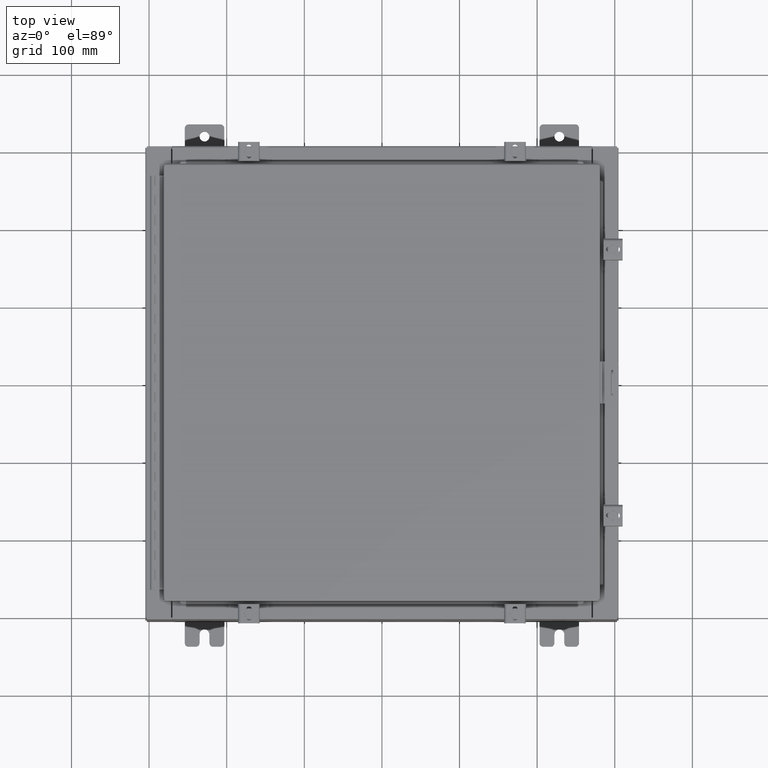
[diagram: clean part render]
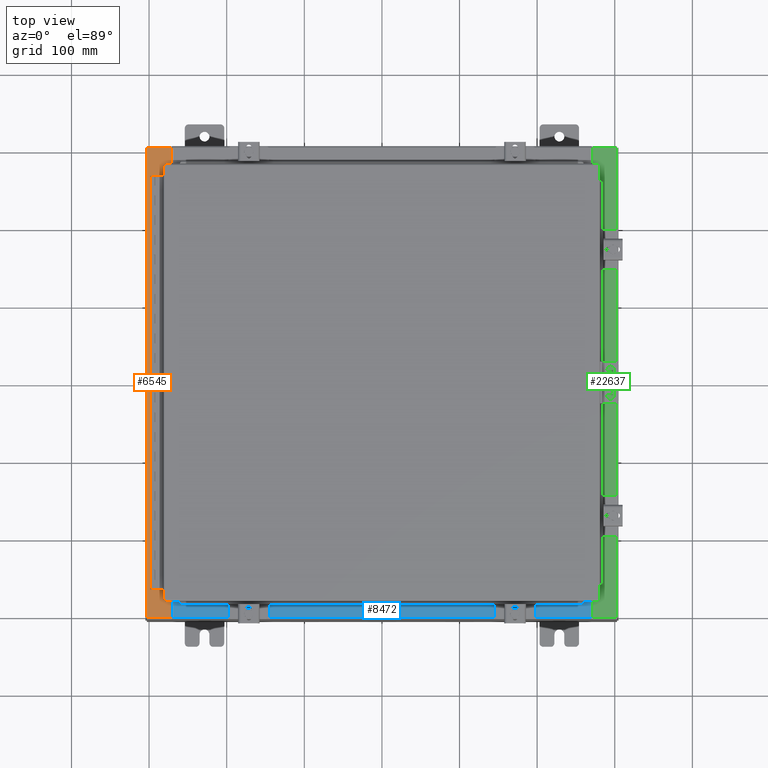
[diagram: same view with three faces highlighted in distinct colors, each labeled with its STEP entity id]
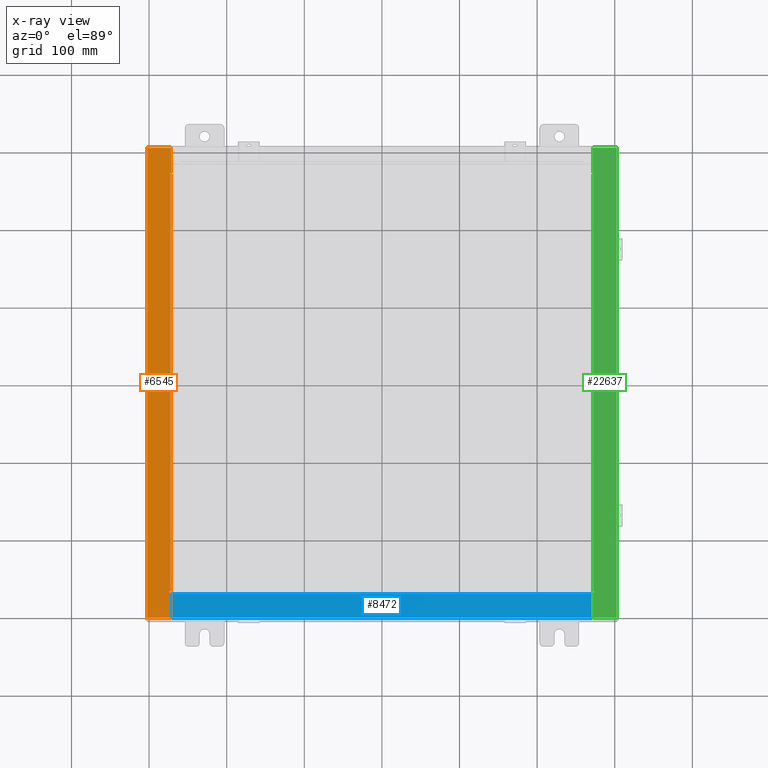
[diagram: x-ray of the same camera — body ghosted, the three highlighted faces saturated]
A machine part, top view with three faces highlighted in distinct colors.
The next image is the same camera in x-ray (body ghosted, the three faces saturated) — at least one of them is partly hidden behind the body in this view.
Their STEP definitions:

[orange] entity #6545 — the highlighted planar face has unit normal (0, 0, -1).
#136 = ORIENTED_EDGE ( 'NONE', *, *, #8608, .F. ) ;
#384 = EDGE_CURVE ( 'NONE', #30628, #19797, #4215, .T. ) ;
#641 = DIRECTION ( 'NONE',  ( -0.0000000000000000000, 1.000000000000000000, -0.0000000000000000000 ) ) ;
#872 = EDGE_CURVE ( 'NONE', #1338, #16832, #12777, .T. ) ;
#1001 = DIRECTION ( 'NONE',  ( -1.000000000000000000, 0.0000000000000000000, -7.132762385546384700E-015 ) ) ;
#1288 = EDGE_CURVE ( 'NONE', #1552, #23624, #2588, .T. ) ;
#1338 = VERTEX_POINT ( 'NONE', #9903 ) ;
#1339 = EDGE_CURVE ( 'NONE', #5008, #29262, #26895, .T. ) ;
#1468 = ORIENTED_EDGE ( 'NONE', *, *, #31183, .F. ) ;
#1552 = VERTEX_POINT ( 'NONE', #9596 ) ;
#2035 = DIRECTION ( 'NONE',  ( 1.000000000000000000, 0.0000000000000000000, 2.170286390199955400E-014 ) ) ;
#2414 = DIRECTION ( 'NONE',  ( -1.000000000000000000, 0.0000000000000000000, 0.0000000000000000000 ) ) ;
#2588 = LINE ( 'NONE', #24606, #28472 ) ;
#3263 = LINE ( 'NONE', #24154, #9909 ) ;
#3873 = CARTESIAN_POINT ( 'NONE',  ( -10.69970000000003200, 10.63109999999999600, 7.925300000000007100 ) ) ;
#3934 = AXIS2_PLACEMENT_3D ( 'NONE', #21127, #6243, #1001 ) ;
#4215 = CIRCLE ( 'NONE', #12865, 0.01867499999999949400 ) ;
#4459 = CARTESIAN_POINT ( 'NONE',  ( -10.69970000000003200, 10.63109999999999600, 7.925300000000008900 ) ) ;
#4732 = VERTEX_POINT ( 'NONE', #6994 ) ;
#4979 = CARTESIAN_POINT ( 'NONE',  ( -10.69970000000003200, 0.0000000000000000000, 7.925300000000008900 ) ) ;
#5008 = VERTEX_POINT ( 'NONE', #25028 ) ;
#5230 = ORIENTED_EDGE ( 'NONE', *, *, #9436, .F. ) ;
#5379 = EDGE_LOOP ( 'NONE', ( #14206, #25906, #11523, #1468, #12451, #27984, #8763, #12577, #5230, #20516, #27761, #136 ) ) ;
#5710 = CARTESIAN_POINT ( 'NONE',  ( -10.75005000000003400, -10.59374999999998900, 7.925300000000008900 ) ) ;
#6137 = VECTOR ( 'NONE', #10556, 39.37007874015748100 ) ;
#6149 = CARTESIAN_POINT ( 'NONE',  ( -10.71270000000003500, 10.59374999999999300, 7.925300000000006200 ) ) ;
#6243 = DIRECTION ( 'NONE',  ( 7.132762385546384700E-015, 0.0000000000000000000, -1.000000000000000000 ) ) ;
#6545 = ADVANCED_FACE ( 'NONE', ( #30928 ), #26410, .F. ) ;
#6599 = DIRECTION ( 'NONE',  ( 1.000000000000000000, -0.0000000000000000000, 7.132762385546384700E-015 ) ) ;
#6705 = LINE ( 'NONE', #4979, #17647 ) ;
#6714 = CARTESIAN_POINT ( 'NONE',  ( -11.91230000000003200, 11.92529999999999800, 7.925300000000000000 ) ) ;
#6885 = VECTOR ( 'NONE', #31942, 39.37007874015748100 ) ;
#6994 = CARTESIAN_POINT ( 'NONE',  ( -10.75005000000003400, 10.63109999999999600, 7.925300000000008900 ) ) ;
#7135 = VECTOR ( 'NONE', #2035, 39.37007874015748100 ) ;
#7811 = LINE ( 'NONE', #27278, #21126 ) ;
#8262 = LINE ( 'NONE', #3873, #21577 ) ;
#8608 = EDGE_CURVE ( 'NONE', #4732, #15903, #21281, .T. ) ;
#8763 = ORIENTED_EDGE ( 'NONE', *, *, #16333, .F. ) ;
#8813 = EDGE_CURVE ( 'NONE', #19196, #1338, #3263, .T. ) ;
#9122 = CARTESIAN_POINT ( 'NONE',  ( -10.75005000000003400, -10.63109999999998800, 7.925300000000008900 ) ) ;
#9436 = EDGE_CURVE ( 'NONE', #29262, #30628, #10243, .T. ) ;
#9596 = CARTESIAN_POINT ( 'NONE',  ( -10.69970000000003200, 11.92529999999999800, 7.925300000000008900 ) ) ;
#9903 = CARTESIAN_POINT ( 'NONE',  ( -10.69970000000003200, -11.92530000000000000, 7.925300000000008900 ) ) ;
#9909 = VECTOR ( 'NONE', #6599, 39.37007874015748100 ) ;
#10243 = LINE ( 'NONE', #32417, #16090 ) ;
#10556 = DIRECTION ( 'NONE',  ( 0.0000000000000000000, 1.000000000000000000, 0.0000000000000000000 ) ) ;
#11523 = ORIENTED_EDGE ( 'NONE', *, *, #1288, .T. ) ;
#11856 = LINE ( 'NONE', #30648, #23629 ) ;
#12451 = ORIENTED_EDGE ( 'NONE', *, *, #8813, .T. ) ;
#12577 = ORIENTED_EDGE ( 'NONE', *, *, #384, .F. ) ;
#12777 = LINE ( 'NONE', #17636, #6137 ) ;
#12865 = AXIS2_PLACEMENT_3D ( 'NONE', #16654, #12980, #28046 ) ;
#12980 = DIRECTION ( 'NONE',  ( -7.132762385546384700E-015, -0.0000000000000000000, 1.000000000000000000 ) ) ;
#13153 = CARTESIAN_POINT ( 'NONE',  ( -10.71270000000003500, -10.59374999999998900, 7.925300000000006200 ) ) ;
#14206 = ORIENTED_EDGE ( 'NONE', *, *, #26430, .F. ) ;
#14909 = DIRECTION ( 'NONE',  ( 1.000000000000000000, 0.0000000000000000000, 0.0000000000000000000 ) ) ;
#15903 = VERTEX_POINT ( 'NONE', #32496 ) ;
#16090 = VECTOR ( 'NONE', #2414, 39.37007874015748100 ) ;
#16300 = AXIS2_PLACEMENT_3D ( 'NONE', #17412, #32456, #14909 ) ;
#16333 = EDGE_CURVE ( 'NONE', #19797, #16832, #26361, .T. ) ;
#16654 = CARTESIAN_POINT ( 'NONE',  ( -10.75005000000003400, -10.61242499999998900, 7.925300000000006200 ) ) ;
#16832 = VERTEX_POINT ( 'NONE', #18934 ) ;
#17412 = CARTESIAN_POINT ( 'NONE',  ( -10.75005000000003400, 10.61242499999999800, 7.925300000000006200 ) ) ;
#17636 = CARTESIAN_POINT ( 'NONE',  ( -10.69970000000003200, 0.0000000000000000000, 7.925300000000008900 ) ) ;
#17647 = VECTOR ( 'NONE', #22522, 39.37007874015748100 ) ;
#18845 = DIRECTION ( 'NONE',  ( -1.000000000000000000, 0.0000000000000000000, -2.170286390199955400E-014 ) ) ;
#18934 = CARTESIAN_POINT ( 'NONE',  ( -10.69970000000003200, -10.63109999999999100, 7.925300000000008900 ) ) ;
#19196 = VERTEX_POINT ( 'NONE', #29420 ) ;
#19797 = VERTEX_POINT ( 'NONE', #9122 ) ;
#20516 = ORIENTED_EDGE ( 'NONE', *, *, #1339, .F. ) ;
#21126 = VECTOR ( 'NONE', #24752, 39.37007874015748100 ) ;
#21127 = CARTESIAN_POINT ( 'NONE',  ( -5.679009539018295300E-014, 0.0000000000000000000, 7.925300000000085300 ) ) ;
#21281 = CIRCLE ( 'NONE', #16300, 0.01867499999999949400 ) ;
#21577 = VECTOR ( 'NONE', #18845, 39.37007874015748100 ) ;
#22074 = CARTESIAN_POINT ( 'NONE',  ( -10.75005000000003400, -10.63109999999998800, 7.925300000000006200 ) ) ;
#22141 = VERTEX_POINT ( 'NONE', #4459 ) ;
#22522 = DIRECTION ( 'NONE',  ( 0.0000000000000000000, 1.000000000000000000, 0.0000000000000000000 ) ) ;
#23624 = VERTEX_POINT ( 'NONE', #6714 ) ;
#23629 = VECTOR ( 'NONE', #641, 39.37007874015748100 ) ;
#24154 = CARTESIAN_POINT ( 'NONE',  ( -5.679009539018295300E-014, -11.92530000000000000, 7.925300000000085300 ) ) ;
#24488 = DIRECTION ( 'NONE',  ( -1.000000000000000000, 0.0000000000000000000, -7.132762385546384700E-015 ) ) ;
#24606 = CARTESIAN_POINT ( 'NONE',  ( -5.679009539018295300E-014, 11.92529999999999800, 7.925300000000085300 ) ) ;
#24752 = DIRECTION ( 'NONE',  ( 1.000000000000000000, 0.0000000000000000000, 0.0000000000000000000 ) ) ;
#25028 = CARTESIAN_POINT ( 'NONE',  ( -10.71270000000003500, 10.59374999999999800, 7.925300000000006200 ) ) ;
#25906 = ORIENTED_EDGE ( 'NONE', *, *, #26080, .T. ) ;
#26080 = EDGE_CURVE ( 'NONE', #22141, #1552, #6705, .T. ) ;
#26361 = LINE ( 'NONE', #22074, #7135 ) ;
#26410 = PLANE ( 'NONE',  #3934 ) ;
#26430 = EDGE_CURVE ( 'NONE', #22141, #4732, #8262, .T. ) ;
#26895 = LINE ( 'NONE', #6149, #6885 ) ;
#27204 = EDGE_CURVE ( 'NONE', #15903, #5008, #7811, .T. ) ;
#27278 = CARTESIAN_POINT ( 'NONE',  ( -10.75005000000003400, 10.59374999999999800, 7.925300000000006200 ) ) ;
#27761 = ORIENTED_EDGE ( 'NONE', *, *, #27204, .F. ) ;
#27984 = ORIENTED_EDGE ( 'NONE', *, *, #872, .T. ) ;
#28046 = DIRECTION ( 'NONE',  ( 1.000000000000000000, 0.0000000000000000000, 0.0000000000000000000 ) ) ;
#28472 = VECTOR ( 'NONE', #24488, 39.37007874015748100 ) ;
#29262 = VERTEX_POINT ( 'NONE', #13153 ) ;
#29420 = CARTESIAN_POINT ( 'NONE',  ( -11.91230000000003200, -11.92530000000000000, 7.925300000000000000 ) ) ;
#30628 = VERTEX_POINT ( 'NONE', #5710 ) ;
#30648 = CARTESIAN_POINT ( 'NONE',  ( -11.91230000000003200, 11.92529999999999800, 7.925300000000000000 ) ) ;
#30928 = FACE_OUTER_BOUND ( 'NONE', #5379, .T. ) ;
#31183 = EDGE_CURVE ( 'NONE', #19196, #23624, #11856, .T. ) ;
#31942 = DIRECTION ( 'NONE',  ( -0.0000000000000000000, -1.000000000000000000, -0.0000000000000000000 ) ) ;
#32417 = CARTESIAN_POINT ( 'NONE',  ( -10.71270000000003500, -10.59374999999998900, 7.925300000000006200 ) ) ;
#32456 = DIRECTION ( 'NONE',  ( -7.132762385546384700E-015, -0.0000000000000000000, 1.000000000000000000 ) ) ;
#32496 = CARTESIAN_POINT ( 'NONE',  ( -10.75005000000003400, 10.59374999999999800, 7.925300000000008900 ) ) ;

[blue] entity #8472 — the highlighted planar face has unit normal (-0, -0, 1).
#234 = ORIENTED_EDGE ( 'NONE', *, *, #11885, .F. ) ;
#672 = CARTESIAN_POINT ( 'NONE',  ( 10.63720000000000400, -1.287299999999999900, 4.000000000000003600 ) ) ;
#1197 = LINE ( 'NONE', #32164, #13716 ) ;
#1350 = DIRECTION ( 'NONE',  ( 0.0000000000000000000, -1.000000000000000000, 3.566381192773190000E-015 ) ) ;
#1973 = ORIENTED_EDGE ( 'NONE', *, *, #28214, .F. ) ;
#2938 = AXIS2_PLACEMENT_3D ( 'NONE', #11379, #21365, #1350 ) ;
#3777 = VERTEX_POINT ( 'NONE', #28280 ) ;
#4613 = VECTOR ( 'NONE', #18255, 39.37007874015748100 ) ;
#8472 = ADVANCED_FACE ( 'NONE', ( #24441 ), #14005, .T. ) ;
#8869 = EDGE_LOOP ( 'NONE', ( #23552, #1973, #234, #10138 ) ) ;
#10138 = ORIENTED_EDGE ( 'NONE', *, *, #30569, .T. ) ;
#11248 = LINE ( 'NONE', #672, #4613 ) ;
#11379 = CARTESIAN_POINT ( 'NONE',  ( 0.0000000000000000000, 1.425992975200418500E-014, 4.000000000000000000 ) ) ;
#11885 = EDGE_CURVE ( 'NONE', #24832, #3777, #1197, .T. ) ;
#13716 = VECTOR ( 'NONE', #14504, 39.37007874015748100 ) ;
#14005 = PLANE ( 'NONE',  #2938 ) ;
#14090 = EDGE_CURVE ( 'NONE', #15236, #14172, #21417, .T. ) ;
#14172 = VERTEX_POINT ( 'NONE', #22307 ) ;
#14504 = DIRECTION ( 'NONE',  ( -0.0000000000000000000, -1.000000000000000000, 3.566381192773190000E-015 ) ) ;
#15236 = VERTEX_POINT ( 'NONE', #19693 ) ;
#18031 = DIRECTION ( 'NONE',  ( -1.000000000000000000, 2.568202152506545800E-017, -9.159187855938968600E-032 ) ) ;
#18255 = DIRECTION ( 'NONE',  ( -1.000000000000000000, 0.0000000000000000000, 0.0000000000000000000 ) ) ;
#19528 = CARTESIAN_POINT ( 'NONE',  ( -10.63720000000000200, -0.07469999999999973900, 4.000000000000000000 ) ) ;
#19693 = CARTESIAN_POINT ( 'NONE',  ( -10.63720000000000200, -1.287299999999999200, 4.000000000000004400 ) ) ;
#20122 = LINE ( 'NONE', #30571, #26030 ) ;
#20630 = VECTOR ( 'NONE', #32181, 39.37007874015748100 ) ;
#21365 = DIRECTION ( 'NONE',  ( 0.0000000000000000000, 3.566381192773190000E-015, 1.000000000000000000 ) ) ;
#21417 = LINE ( 'NONE', #19528, #20630 ) ;
#22307 = CARTESIAN_POINT ( 'NONE',  ( -10.63720000000000200, -0.08770000000000000000, 4.000000000000000000 ) ) ;
#23552 = ORIENTED_EDGE ( 'NONE', *, *, #14090, .F. ) ;
#24441 = FACE_OUTER_BOUND ( 'NONE', #8869, .T. ) ;
#24832 = VERTEX_POINT ( 'NONE', #26579 ) ;
#26030 = VECTOR ( 'NONE', #18031, 39.37007874015748100 ) ;
#26579 = CARTESIAN_POINT ( 'NONE',  ( 10.63720000000000400, -0.08769999999999965300, 4.000000000000000000 ) ) ;
#28214 = EDGE_CURVE ( 'NONE', #3777, #15236, #11248, .T. ) ;
#28280 = CARTESIAN_POINT ( 'NONE',  ( 10.63720000000000200, -1.287299999999999900, 4.000000000000004400 ) ) ;
#30569 = EDGE_CURVE ( 'NONE', #24832, #14172, #20122, .T. ) ;
#30571 = CARTESIAN_POINT ( 'NONE',  ( -2.252313287748606700E-018, -0.08770000000000000000, 4.000000000000000900 ) ) ;
#32164 = CARTESIAN_POINT ( 'NONE',  ( 10.63720000000000200, -1.300299999999999800, 4.000000000000004400 ) ) ;
#32181 = DIRECTION ( 'NONE',  ( -0.0000000000000000000, 1.000000000000000000, -3.566381192773190000E-015 ) ) ;

[green] entity #22637 — the highlighted planar face has unit normal (-0, -0, -1).
#1234 = CARTESIAN_POINT ( 'NONE',  ( 10.71270000000003000, -10.59375000000000200, 7.925300000000009800 ) ) ;
#1383 = ORIENTED_EDGE ( 'NONE', *, *, #14694, .F. ) ;
#1505 = LINE ( 'NONE', #16838, #28177 ) ;
#1619 = FACE_OUTER_BOUND ( 'NONE', #3401, .T. ) ;
#1790 = VERTEX_POINT ( 'NONE', #13407 ) ;
#1930 = CARTESIAN_POINT ( 'NONE',  ( 10.75005000000003000, -10.63110000000000200, 7.925300000000008900 ) ) ;
#1962 = VERTEX_POINT ( 'NONE', #31929 ) ;
#2003 = LINE ( 'NONE', #9413, #28666 ) ;
#2334 = CARTESIAN_POINT ( 'NONE',  ( 10.71270000000003000, 10.59374999999998400, 7.925300000000009800 ) ) ;
#2363 = VERTEX_POINT ( 'NONE', #25204 ) ;
#2484 = CIRCLE ( 'NONE', #10827, 0.01867499999999949400 ) ;
#2486 = CARTESIAN_POINT ( 'NONE',  ( 10.75005000000003000, 10.63109999999998400, 7.925300000000008900 ) ) ;
#3401 = EDGE_LOOP ( 'NONE', ( #18273, #3866, #27136, #30203, #18004, #25582, #1383, #3640, #12424, #21779, #30522, #12222 ) ) ;
#3640 = ORIENTED_EDGE ( 'NONE', *, *, #31002, .F. ) ;
#3866 = ORIENTED_EDGE ( 'NONE', *, *, #20347, .T. ) ;
#3982 = CARTESIAN_POINT ( 'NONE',  ( 4.972393517341146200E-014, 3.631055806426268100E-016, 7.925300000000075500 ) ) ;
#4685 = EDGE_CURVE ( 'NONE', #9062, #29041, #9481, .T. ) ;
#4910 = DIRECTION ( 'NONE',  ( 6.241167087353086200E-015, 4.581600452255730400E-017, 1.000000000000000000 ) ) ;
#5749 = EDGE_CURVE ( 'NONE', #23033, #24791, #6280, .T. ) ;
#5829 = DIRECTION ( 'NONE',  ( -1.000000000000000000, 0.0000000000000000000, 0.0000000000000000000 ) ) ;
#5937 = EDGE_CURVE ( 'NONE', #18363, #19207, #28249, .T. ) ;
#5948 = VECTOR ( 'NONE', #14557, 39.37007874015748100 ) ;
#6280 = LINE ( 'NONE', #24365, #12915 ) ;
#6899 = DIRECTION ( 'NONE',  ( -1.000000000000000000, 0.0000000000000000000, 6.241167087353087800E-015 ) ) ;
#7915 = AXIS2_PLACEMENT_3D ( 'NONE', #3982, #11511, #29063 ) ;
#8665 = VECTOR ( 'NONE', #13212, 39.37007874015748100 ) ;
#9062 = VERTEX_POINT ( 'NONE', #2334 ) ;
#9110 = CARTESIAN_POINT ( 'NONE',  ( 10.71270000000003000, 10.59374999999998400, 7.925300000000009800 ) ) ;
#9340 = EDGE_CURVE ( 'NONE', #10999, #9062, #25171, .T. ) ;
#9413 = CARTESIAN_POINT ( 'NONE',  ( 10.69970000000002800, 3.631055806426238000E-016, 7.925300000000008900 ) ) ;
#9450 = AXIS2_PLACEMENT_3D ( 'NONE', #24645, #9625, #27172 ) ;
#9481 = LINE ( 'NONE', #9110, #23596 ) ;
#9625 = DIRECTION ( 'NONE',  ( 6.241167087353086200E-015, 4.581600452255730400E-017, 1.000000000000000000 ) ) ;
#10827 = AXIS2_PLACEMENT_3D ( 'NONE', #19864, #4910, #22431 ) ;
#10986 = LINE ( 'NONE', #20663, #8665 ) ;
#10999 = VERTEX_POINT ( 'NONE', #1234 ) ;
#11511 = DIRECTION ( 'NONE',  ( -6.241167087353086200E-015, -4.581600452255731000E-017, -1.000000000000000000 ) ) ;
#11743 = DIRECTION ( 'NONE',  ( -1.000000000000000000, 0.0000000000000000000, -2.170286390199955400E-014 ) ) ;
#11920 = DIRECTION ( 'NONE',  ( -4.379057701015054300E-047, -1.000000000000000000, 4.581600452255731000E-017 ) ) ;
#12222 = ORIENTED_EDGE ( 'NONE', *, *, #18130, .F. ) ;
#12424 = ORIENTED_EDGE ( 'NONE', *, *, #4685, .F. ) ;
#12915 = VECTOR ( 'NONE', #23481, 39.37007874015748100 ) ;
#13061 = LINE ( 'NONE', #29287, #26416 ) ;
#13079 = DIRECTION ( 'NONE',  ( 1.000000000000000000, 0.0000000000000000000, 2.170286390199955400E-014 ) ) ;
#13212 = DIRECTION ( 'NONE',  ( -9.163200904511462000E-017, -1.000000000000000000, 4.581600452255787700E-017 ) ) ;
#13407 = CARTESIAN_POINT ( 'NONE',  ( 10.75005000000003000, -10.59375000000000200, 7.925300000000008900 ) ) ;
#14557 = DIRECTION ( 'NONE',  ( -0.0000000000000000000, 1.000000000000000000, -0.0000000000000000000 ) ) ;
#14694 = EDGE_CURVE ( 'NONE', #17761, #2363, #13061, .T. ) ;
#14803 = CARTESIAN_POINT ( 'NONE',  ( 10.75005000000003000, 10.59374999999998400, 7.925300000000007100 ) ) ;
#15048 = CIRCLE ( 'NONE', #9450, 0.01867499999999949400 ) ;
#15296 = LINE ( 'NONE', #31882, #21979 ) ;
#15374 = CARTESIAN_POINT ( 'NONE',  ( 10.69970000000002800, -10.63110000000000200, 7.925300000000008900 ) ) ;
#16838 = CARTESIAN_POINT ( 'NONE',  ( 4.972393517341146200E-014, 11.92529999999999600, 7.925300000000075500 ) ) ;
#17274 = EDGE_CURVE ( 'NONE', #1962, #24791, #10986, .T. ) ;
#17761 = VERTEX_POINT ( 'NONE', #2486 ) ;
#18004 = ORIENTED_EDGE ( 'NONE', *, *, #27897, .T. ) ;
#18130 = EDGE_CURVE ( 'NONE', #19207, #1790, #15048, .T. ) ;
#18273 = ORIENTED_EDGE ( 'NONE', *, *, #5937, .F. ) ;
#18363 = VERTEX_POINT ( 'NONE', #28271 ) ;
#19207 = VERTEX_POINT ( 'NONE', #1930 ) ;
#19344 = DIRECTION ( 'NONE',  ( -4.379057701015054300E-047, -1.000000000000000000, 4.581600452255731000E-017 ) ) ;
#19864 = CARTESIAN_POINT ( 'NONE',  ( 10.75005000000003000, 10.61242499999998400, 7.925300000000009800 ) ) ;
#20347 = EDGE_CURVE ( 'NONE', #18363, #23033, #15296, .T. ) ;
#20364 = EDGE_CURVE ( 'NONE', #24210, #2363, #2003, .T. ) ;
#20600 = VECTOR ( 'NONE', #5829, 39.37007874015748100 ) ;
#20663 = CARTESIAN_POINT ( 'NONE',  ( 11.91230000000002700, -11.92530000000000400, 7.925300000000000900 ) ) ;
#20752 = VECTOR ( 'NONE', #13079, 39.37007874015748100 ) ;
#21779 = ORIENTED_EDGE ( 'NONE', *, *, #9340, .F. ) ;
#21979 = VECTOR ( 'NONE', #19344, 39.37007874015748100 ) ;
#22431 = DIRECTION ( 'NONE',  ( 1.000000000000000000, 0.0000000000000000000, 0.0000000000000000000 ) ) ;
#22637 = ADVANCED_FACE ( 'NONE', ( #1619 ), #26534, .F. ) ;
#23003 = CARTESIAN_POINT ( 'NONE',  ( 10.69970000000002800, -11.92530000000000400, 7.925300000000009800 ) ) ;
#23033 = VERTEX_POINT ( 'NONE', #23003 ) ;
#23481 = DIRECTION ( 'NONE',  ( 1.000000000000000000, 0.0000000000000000000, -6.241167087353087800E-015 ) ) ;
#23596 = VECTOR ( 'NONE', #26950, 39.37007874015748100 ) ;
#23842 = CARTESIAN_POINT ( 'NONE',  ( 11.91230000000002900, -11.92530000000000400, 7.925300000000000900 ) ) ;
#24205 = CARTESIAN_POINT ( 'NONE',  ( 10.69970000000002800, 11.92529999999999600, 7.925300000000008900 ) ) ;
#24210 = VERTEX_POINT ( 'NONE', #24205 ) ;
#24365 = CARTESIAN_POINT ( 'NONE',  ( 4.972393517341146200E-014, -11.92530000000000400, 7.925300000000076400 ) ) ;
#24645 = CARTESIAN_POINT ( 'NONE',  ( 10.75005000000003000, -10.61242500000000200, 7.925300000000009800 ) ) ;
#24791 = VERTEX_POINT ( 'NONE', #23842 ) ;
#25171 = LINE ( 'NONE', #32102, #5948 ) ;
#25204 = CARTESIAN_POINT ( 'NONE',  ( 10.69970000000002800, 10.63109999999998600, 7.925300000000008900 ) ) ;
#25582 = ORIENTED_EDGE ( 'NONE', *, *, #20364, .T. ) ;
#25881 = CARTESIAN_POINT ( 'NONE',  ( 10.75005000000003000, -10.59375000000000200, 7.925300000000009800 ) ) ;
#26416 = VECTOR ( 'NONE', #11743, 39.37007874015748100 ) ;
#26534 = PLANE ( 'NONE',  #7915 ) ;
#26950 = DIRECTION ( 'NONE',  ( 1.000000000000000000, 0.0000000000000000000, 0.0000000000000000000 ) ) ;
#27136 = ORIENTED_EDGE ( 'NONE', *, *, #5749, .T. ) ;
#27172 = DIRECTION ( 'NONE',  ( 1.000000000000000000, 0.0000000000000000000, 0.0000000000000000000 ) ) ;
#27282 = LINE ( 'NONE', #25881, #20600 ) ;
#27897 = EDGE_CURVE ( 'NONE', #1962, #24210, #1505, .T. ) ;
#28177 = VECTOR ( 'NONE', #6899, 39.37007874015748100 ) ;
#28249 = LINE ( 'NONE', #15374, #20752 ) ;
#28271 = CARTESIAN_POINT ( 'NONE',  ( 10.69970000000002800, -10.63110000000000200, 7.925300000000008900 ) ) ;
#28666 = VECTOR ( 'NONE', #11920, 39.37007874015748100 ) ;
#29041 = VERTEX_POINT ( 'NONE', #14803 ) ;
#29063 = DIRECTION ( 'NONE',  ( -1.000000000000000000, 0.0000000000000000000, 6.241167087353086200E-015 ) ) ;
#29287 = CARTESIAN_POINT ( 'NONE',  ( 10.75005000000003000, 10.63109999999998400, 7.925300000000009800 ) ) ;
#29295 = EDGE_CURVE ( 'NONE', #1790, #10999, #27282, .T. ) ;
#30203 = ORIENTED_EDGE ( 'NONE', *, *, #17274, .F. ) ;
#30522 = ORIENTED_EDGE ( 'NONE', *, *, #29295, .F. ) ;
#31002 = EDGE_CURVE ( 'NONE', #29041, #17761, #2484, .T. ) ;
#31882 = CARTESIAN_POINT ( 'NONE',  ( 10.69970000000002800, 3.631055806426238000E-016, 7.925300000000008900 ) ) ;
#31929 = CARTESIAN_POINT ( 'NONE',  ( 11.91230000000002900, 11.92529999999999600, 7.925300000000000000 ) ) ;
#32102 = CARTESIAN_POINT ( 'NONE',  ( 10.71270000000003000, -10.59374999999999800, 7.925300000000009800 ) ) ;